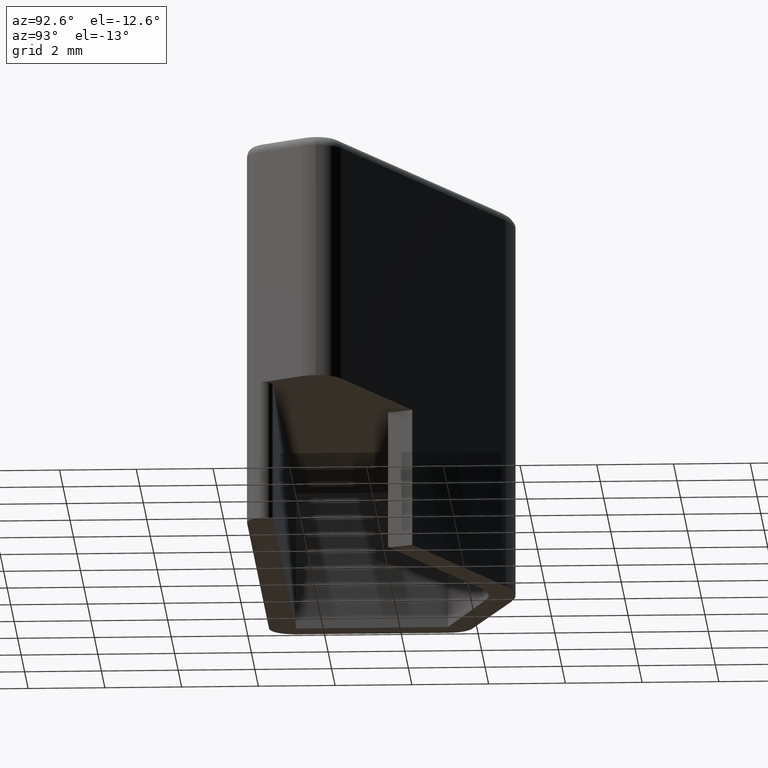
[diagram: clean part render]
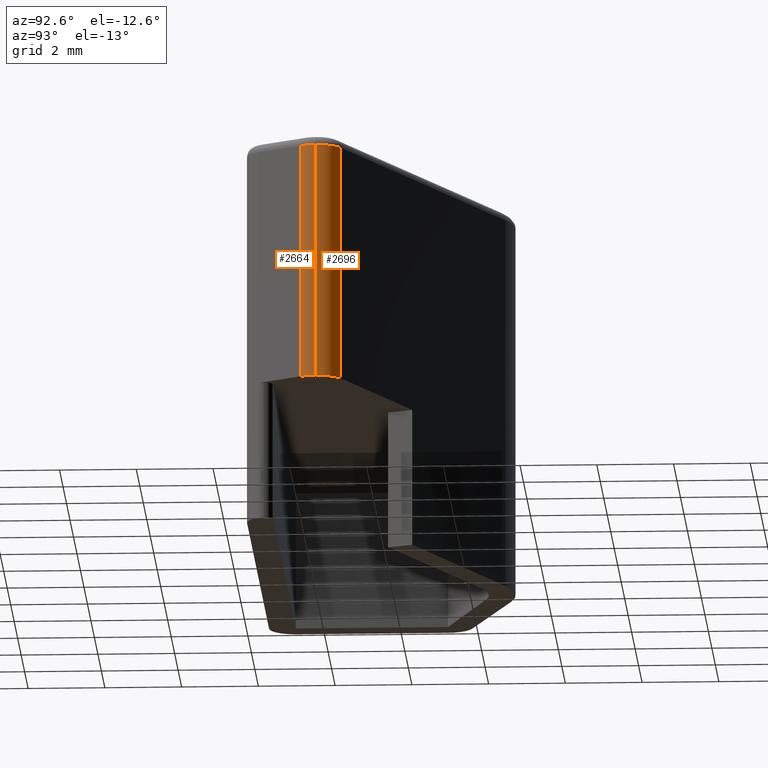
[diagram: same view with one multi-face feature highlighted, each face labeled with its STEP entity id]
A machine part, auxiliary view. The highlighted faces form ONE feature: a constant-radius fillet chain: 2 tangent blend faces with common blend radius 0.7 mm. The faces share edges in the B-rep.
Their STEP definitions:
[1] entity #2696 (Cylinder):
#221 = DIRECTION ( 'NONE',  ( 1.000000000000000000, 3.965082230804409700E-014, 0.0000000000000000000 ) ) ;
#239 = DIRECTION ( 'NONE',  ( -0.0000000000000000000, -0.0000000000000000000, -1.000000000000000000 ) ) ;
#246 = CARTESIAN_POINT ( 'NONE',  ( 230.9528882970909900, 144.3821278490894100, 40.64999999999999900 ) ) ;
#306 = DIRECTION ( 'NONE',  ( 0.0000000000000000000, 0.0000000000000000000, 1.000000000000000000 ) ) ;
#323 = LINE ( 'NONE', #346, #2215 ) ;
#346 = CARTESIAN_POINT ( 'NONE',  ( 231.2411507997860000, 145.0200186936230000, 34.50000000000000000 ) ) ;
#371 = CARTESIAN_POINT ( 'NONE',  ( 230.9528882970909900, 144.3821278490894100, 34.50000000000000000 ) ) ;
#391 = DIRECTION ( 'NONE',  ( 1.000000000000000000, 0.0000000000000000000, 0.0000000000000000000 ) ) ;
#398 = DIRECTION ( 'NONE',  ( 0.0000000000000000000, 0.0000000000000000000, 1.000000000000000000 ) ) ;
#1143 = ORIENTED_EDGE ( 'NONE', *, *, #2427, .F. ) ;
#1147 = ORIENTED_EDGE ( 'NONE', *, *, #2547, .T. ) ;
#1191 = ORIENTED_EDGE ( 'NONE', *, *, #2534, .T. ) ;
#1457 = CARTESIAN_POINT ( 'NONE',  ( 231.6528882970909300, 144.3821278490894100, 34.50000000000000000 ) ) ;
#1531 = CARTESIAN_POINT ( 'NONE',  ( 231.6528882970909300, 144.3821278490894100, 40.64999999999999900 ) ) ;
#1548 = CARTESIAN_POINT ( 'NONE',  ( 231.2411507997860000, 145.0200186936230000, 40.64999999999999900 ) ) ;
#1614 = CARTESIAN_POINT ( 'NONE',  ( 231.2411507997860000, 145.0200186936230000, 34.50000000000000000 ) ) ;
#1638 = CARTESIAN_POINT ( 'NONE',  ( 231.6528882970909300, 144.3821278490894100, 34.50000000000000000 ) ) ;
#1650 = DIRECTION ( 'NONE',  ( 0.0000000000000000000, 0.0000000000000000000, 1.000000000000000000 ) ) ;
#1662 = LINE ( 'NONE', #1638, #2114 ) ;
#1855 = EDGE_LOOP ( 'NONE', ( #1143, #1147, #1191, #2026 ) ) ;
#1914 = VERTEX_POINT ( 'NONE', #1457 ) ;
#1931 = VERTEX_POINT ( 'NONE', #1531 ) ;
#1964 = VERTEX_POINT ( 'NONE', #1548 ) ;
#1996 = VERTEX_POINT ( 'NONE', #1614 ) ;
#2026 = ORIENTED_EDGE ( 'NONE', *, *, #2503, .T. ) ;
#2114 = VECTOR ( 'NONE', #1650, 1000.000000000000000 ) ;
#2215 = VECTOR ( 'NONE', #306, 1000.000000000000000 ) ;
#2232 = CIRCLE ( 'NONE', #2245, 0.6999999999999506600 ) ;
#2245 = AXIS2_PLACEMENT_3D ( 'NONE', #246, #239, #221 ) ;
#2273 = AXIS2_PLACEMENT_3D ( 'NONE', #371, #398, #391 ) ;
#2276 = CIRCLE ( 'NONE', #2273, 0.6999999999999506600 ) ;
#2375 = AXIS2_PLACEMENT_3D ( 'NONE', #2996, #2952, #2984 ) ;
#2427 = EDGE_CURVE ( 'NONE', #1914, #1931, #1662, .T. ) ;
#2503 = EDGE_CURVE ( 'NONE', #1964, #1931, #2232, .T. ) ;
#2534 = EDGE_CURVE ( 'NONE', #1996, #1964, #323, .T. ) ;
#2547 = EDGE_CURVE ( 'NONE', #1914, #1996, #2276, .T. ) ;
#2696 = ADVANCED_FACE ( 'NONE', ( #2980 ), #2989, .T. ) ;
#2952 = DIRECTION ( 'NONE',  ( 0.0000000000000000000, 0.0000000000000000000, 1.000000000000000000 ) ) ;
#2980 = FACE_OUTER_BOUND ( 'NONE', #1855, .T. ) ;
#2984 = DIRECTION ( 'NONE',  ( 1.000000000000000000, 0.0000000000000000000, 0.0000000000000000000 ) ) ;
#2989 = CYLINDRICAL_SURFACE ( 'NONE', #2375, 0.6999999999999506600 ) ;
#2996 = CARTESIAN_POINT ( 'NONE',  ( 230.9528882970909900, 144.3821278490894100, 34.50000000000000000 ) ) ;
[2] entity #2664 (Cylinder):
#80 = DIRECTION ( 'NONE',  ( 0.0000000000000000000, 0.0000000000000000000, 1.000000000000000000 ) ) ;
#105 = CARTESIAN_POINT ( 'NONE',  ( 231.5382903010385000, 143.9983251735199900, 34.50000000000000000 ) ) ;
#109 = LINE ( 'NONE', #105, #2171 ) ;
#972 = DIRECTION ( 'NONE',  ( 0.0000000000000000000, 0.0000000000000000000, 1.000000000000000000 ) ) ;
#980 = FACE_OUTER_BOUND ( 'NONE', #1794, .T. ) ;
#1006 = CYLINDRICAL_SURFACE ( 'NONE', #2322, 0.6999999999999506600 ) ;
#1010 = DIRECTION ( 'NONE',  ( 1.000000000000000000, 0.0000000000000000000, 0.0000000000000000000 ) ) ;
#1018 = CARTESIAN_POINT ( 'NONE',  ( 230.9528882970909900, 144.3821278490894100, 34.50000000000000000 ) ) ;
#1450 = CARTESIAN_POINT ( 'NONE',  ( 231.5382903010385000, 143.9983251735199900, 40.64999999999999900 ) ) ;
#1457 = CARTESIAN_POINT ( 'NONE',  ( 231.6528882970909300, 144.3821278490894100, 34.50000000000000000 ) ) ;
#1471 = CARTESIAN_POINT ( 'NONE',  ( 231.5382903010385000, 143.9983251735199900, 34.50000000000000000 ) ) ;
#1531 = CARTESIAN_POINT ( 'NONE',  ( 231.6528882970909300, 144.3821278490894100, 40.64999999999999900 ) ) ;
#1578 = DIRECTION ( 'NONE',  ( 0.0000000000000000000, 0.0000000000000000000, 1.000000000000000000 ) ) ;
#1585 = DIRECTION ( 'NONE',  ( 1.000000000000000000, 0.0000000000000000000, 0.0000000000000000000 ) ) ;
#1621 = DIRECTION ( 'NONE',  ( -0.0000000000000000000, -0.0000000000000000000, -1.000000000000000000 ) ) ;
#1623 = CARTESIAN_POINT ( 'NONE',  ( 230.9528882970909900, 144.3821278490894100, 34.50000000000000000 ) ) ;
#1624 = CARTESIAN_POINT ( 'NONE',  ( 230.9528882970909900, 144.3821278490894100, 40.64999999999999900 ) ) ;
#1625 = DIRECTION ( 'NONE',  ( 1.000000000000000000, 0.0000000000000000000, 0.0000000000000000000 ) ) ;
#1638 = CARTESIAN_POINT ( 'NONE',  ( 231.6528882970909300, 144.3821278490894100, 34.50000000000000000 ) ) ;
#1650 = DIRECTION ( 'NONE',  ( 0.0000000000000000000, 0.0000000000000000000, 1.000000000000000000 ) ) ;
#1662 = LINE ( 'NONE', #1638, #2114 ) ;
#1794 = EDGE_LOOP ( 'NONE', ( #2007, #2065, #2020, #2051 ) ) ;
#1889 = VERTEX_POINT ( 'NONE', #1471 ) ;
#1893 = VERTEX_POINT ( 'NONE', #1450 ) ;
#1914 = VERTEX_POINT ( 'NONE', #1457 ) ;
#1931 = VERTEX_POINT ( 'NONE', #1531 ) ;
#2007 = ORIENTED_EDGE ( 'NONE', *, *, #2416, .T. ) ;
#2020 = ORIENTED_EDGE ( 'NONE', *, *, #2419, .T. ) ;
#2051 = ORIENTED_EDGE ( 'NONE', *, *, #2464, .F. ) ;
#2065 = ORIENTED_EDGE ( 'NONE', *, *, #2427, .T. ) ;
#2106 = AXIS2_PLACEMENT_3D ( 'NONE', #1624, #1621, #1625 ) ;
#2109 = AXIS2_PLACEMENT_3D ( 'NONE', #1623, #1578, #1585 ) ;
#2114 = VECTOR ( 'NONE', #1650, 1000.000000000000000 ) ;
#2115 = CIRCLE ( 'NONE', #2109, 0.6999999999999506600 ) ;
#2126 = CIRCLE ( 'NONE', #2106, 0.6999999999999506600 ) ;
#2171 = VECTOR ( 'NONE', #80, 1000.000000000000000 ) ;
#2322 = AXIS2_PLACEMENT_3D ( 'NONE', #1018, #972, #1010 ) ;
#2416 = EDGE_CURVE ( 'NONE', #1889, #1914, #2115, .T. ) ;
#2419 = EDGE_CURVE ( 'NONE', #1931, #1893, #2126, .T. ) ;
#2427 = EDGE_CURVE ( 'NONE', #1914, #1931, #1662, .T. ) ;
#2464 = EDGE_CURVE ( 'NONE', #1889, #1893, #109, .T. ) ;
#2664 = ADVANCED_FACE ( 'NONE', ( #980 ), #1006, .T. ) ;